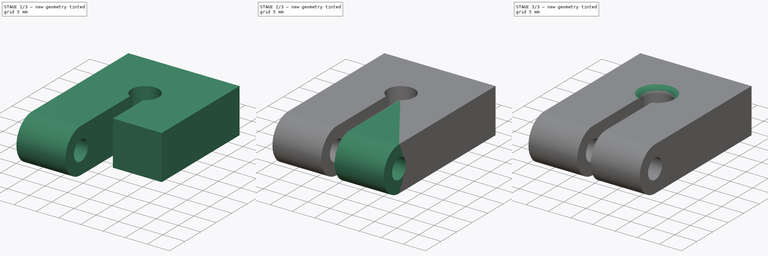
[diagram: build sequence overview — one tinted view per stage of 3, left to right]
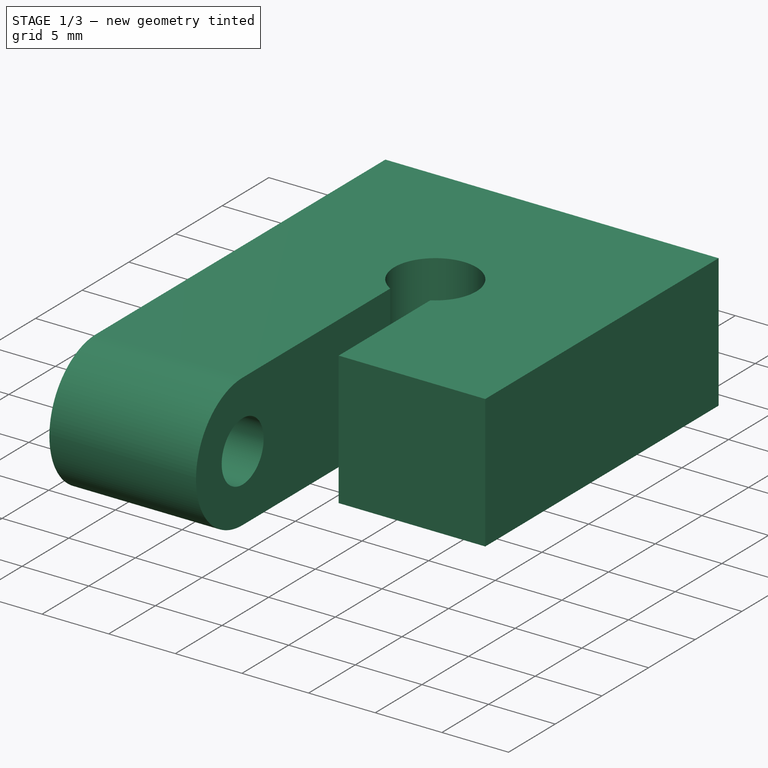
[diagram: stage 1 of 3 — iso view after this stage's code; geometry added in this stage tinted green]
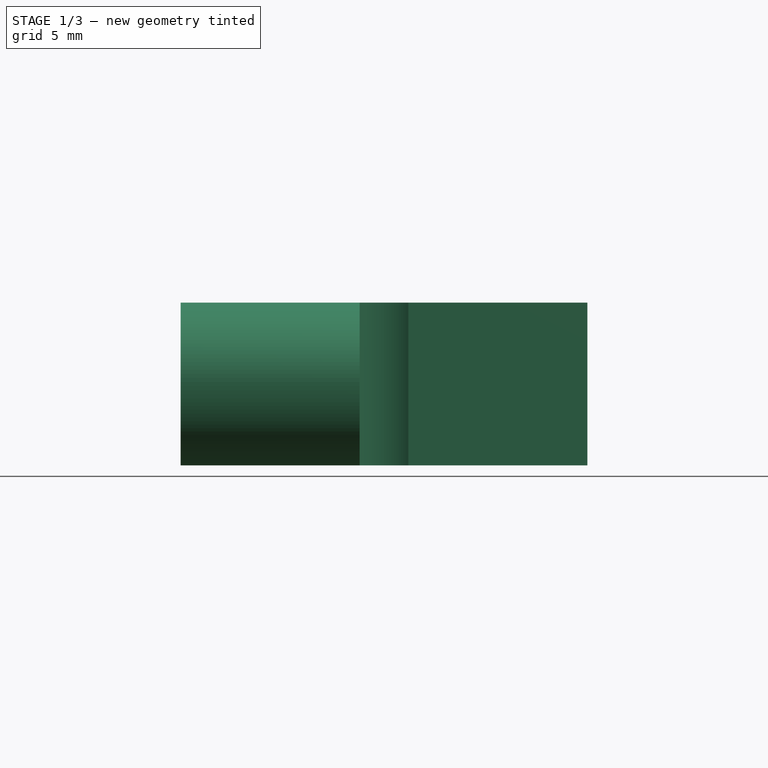
[diagram: stage 1 of 3 — front view after this stage's code; geometry added in this stage tinted green]
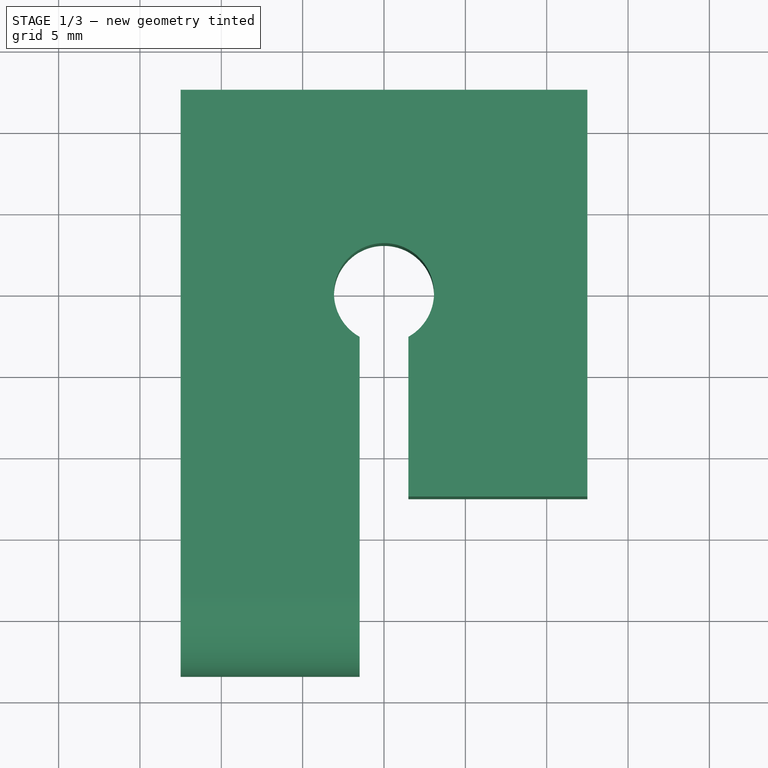
[diagram: stage 1 of 3 — top view after this stage's code; geometry added in this stage tinted green]
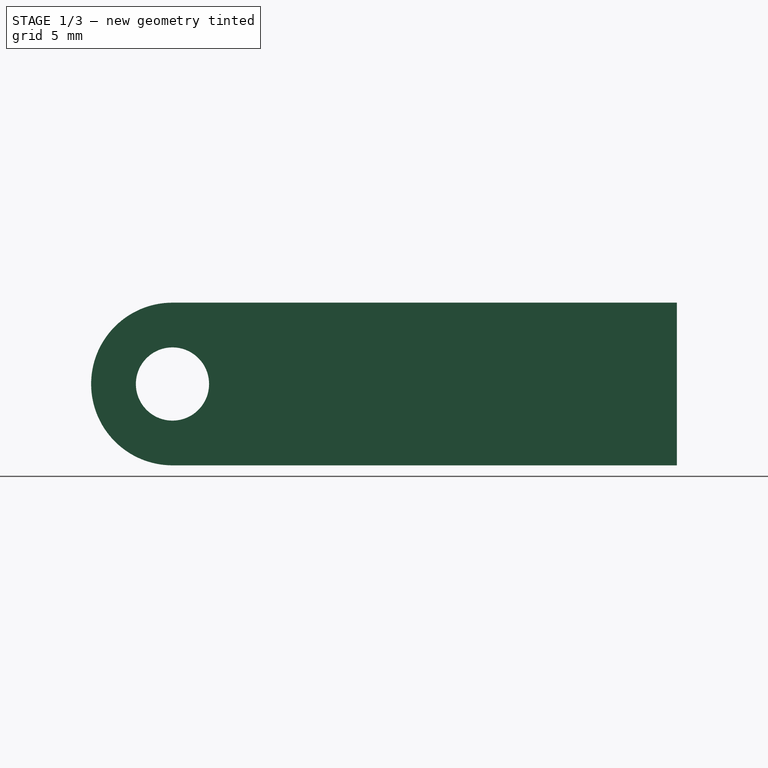
[diagram: stage 1 of 3 — right view after this stage's code; geometry added in this stage tinted green]
FCSTD DOCUMENT  (FreeCAD 1.1R40077 (Git))
Label: NewClampTest
License: All rights reserved
LicenseURL: https://en.wikipedia.org/wiki/All_rights_reserved
objects: Sketcher::SketchObject×3, PartDesign::Pad×2, PartDesign::Mirrored×2, App::Point×1, PartDesign::Groove×1, Part::DatumPlane×1, PartDesign::Body×1
note: 20 computed .brp shape members not serialized (recipe doc carries the construction recipe); baked Part::Feature solids carry a one-line shape summary decoded from their .brp

FEATURE [App::Point] Origin001
  Role = Origin
FEATURE [Sketcher::SketchObject] Sketch
  ArcFitTolerance = 1e-06
  AttachmentSupport = -> [XY_Plane]
  ExternalTypes = [0]
  FullyConstrained = true
  MakeInternals = false
  MapMode = 5
  sketch-geometry (10):
    g0: ArcOfCircle CenterX=0 CenterY=0 CenterZ=0 NormalX=0 NormalY=0 NormalZ=1 AngleXU=0 Radius=3.075 StartAngle=5.22196 EndAngle=10.486
    g1: LineSegment StartX=-12.5 StartY=12.5 StartZ=0 EndX=-12.5 EndY=-12.5 EndZ=0
    g2: LineSegment StartX=-12.5 StartY=-12.5 StartZ=0 EndX=-1.5 EndY=-12.5 EndZ=0
    g3: LineSegment StartX=12.5 StartY=-12.5 StartZ=0 EndX=12.5 EndY=12.5 EndZ=0
    g4: LineSegment StartX=12.5 StartY=12.5 StartZ=0 EndX=-12.5 EndY=12.5 EndZ=0
    g5: GeomPoint [constr] X=0 Y=0 Z=0
    g6: LineSegment StartX=1.5 StartY=-2.68433 StartZ=0 EndX=1.5 EndY=-12.5 EndZ=0
    g7: LineSegment StartX=-1.5 StartY=-12.5 StartZ=0 EndX=-1.5 EndY=-2.68433 EndZ=0
    g8: LineSegment StartX=1.5 StartY=-12.5 StartZ=0 EndX=12.5 EndY=-12.5 EndZ=0
    g9: GeomPoint X=0 Y=-2.68433 Z=0
  constraints (25):
    c: Coincident(g0,g-1)
    c: Coincident(g1,g2)
    c: Coincident(g3,g4)
    c: Coincident(g4,g1)
    c: Vertical(g1)
    c: Vertical(g3)
    c: Horizontal(g4)
    c: Symmetric(g3,g1,g5)
    c: Coincident(g5,g0)
    c: DistanceY(g3,g3) = 25
    c: Equal(g3,g4)
    c: Coincident(g8,g3)
    c: Vertical(g6)
    c: Vertical(g7)
    c: Diameter(g0) = 6.15
    c: Coincident(g6,g0)
    c: Coincident(g7,g0)
    c: Horizontal(g2)
    c: Horizontal(g8)
    c: Coincident(g6,g8)
    c: Coincident(g7,g2)
    c: PointOnObject(g9,g-2)
    c: Symmetric(g0,g0,g9)
    c: Distance(g7,g6) = 3
    c: Horizontal(g2,g6)
FEATURE [PartDesign::Pad] Pad
  Direction = (0,0,1)
  Length = 10
  Length2 = 10
  Profile = -> Sketch
  ReferenceAxis = -> Sketch [N_Axis]
  Refine = true
  Suppressed = false
  Type = 0
FEATURE [Sketcher::SketchObject] Sketch001
  ArcFitTolerance = 1e-06
  AttachmentSupport = -> [Pad]
  ExternalGeometry = -> [Pad]
  ExternalTypes = [0]
  FullyConstrained = true
  MakeInternals = false
  MapMode = 5
  Placement = pos=(-1.5,0,0) rot=(0.57735,0.57735,0.57735;2.0944rad)
  sketch-geometry (4):
    g0: LineSegment StartX=-12.5 StartY=10 StartZ=0 EndX=-18.5 EndY=10 EndZ=0
    g1: ArcOfCircle CenterX=-18.5 CenterY=5 CenterZ=0 NormalX=0 NormalY=0 NormalZ=1 AngleXU=0 Radius=5 StartAngle=1.5708 EndAngle=4.71239
    g2: Circle CenterX=-18.5 CenterY=5 CenterZ=0 NormalX=0 NormalY=0 NormalZ=1 AngleXU=0 Radius=2.25
    g3: LineSegment StartX=-18.5 StartY=-1.00577e-11 StartZ=0 EndX=-12.5 EndY=-1.00577e-11 EndZ=0
  constraints (10):
    c: Coincident(g0,g-3)
    c: Horizontal(g0)
    c: Vertical(g1,g1)
    c: Tangent(g1,g0) = -1.5708
    c: Diameter(g2) = 4.5
    c: Coincident(g2,g1)
    c: DistanceX(g3,g3) = 6
    c: Coincident(g3,g-3)
    c: Coincident(g3,g1)
    c: Horizontal(g3)
FEATURE [PartDesign::Pad] Pad001
  BaseFeature = -> Pad
  Direction = (1,0,0)
  Length = 10
  Length2 = 10
  Profile = -> Sketch001
  ReferenceAxis = -> Sketch001 [N_Axis]
  Refine = true
  Suppressed = false
  Type = 3
  UpToFace = -> Pad [Face5]
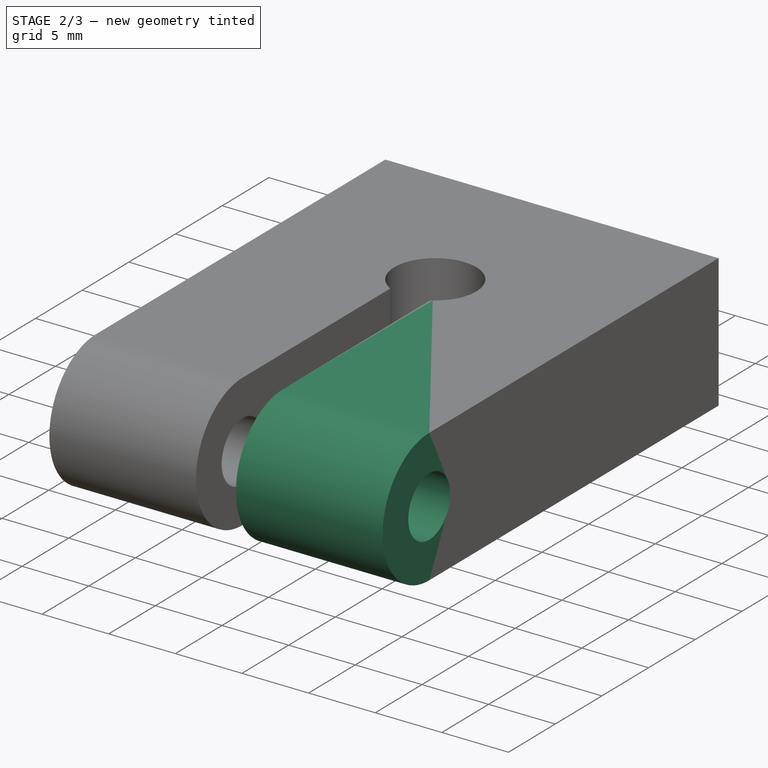
[diagram: stage 2 of 3 — iso view after this stage's code; geometry added in this stage tinted green]
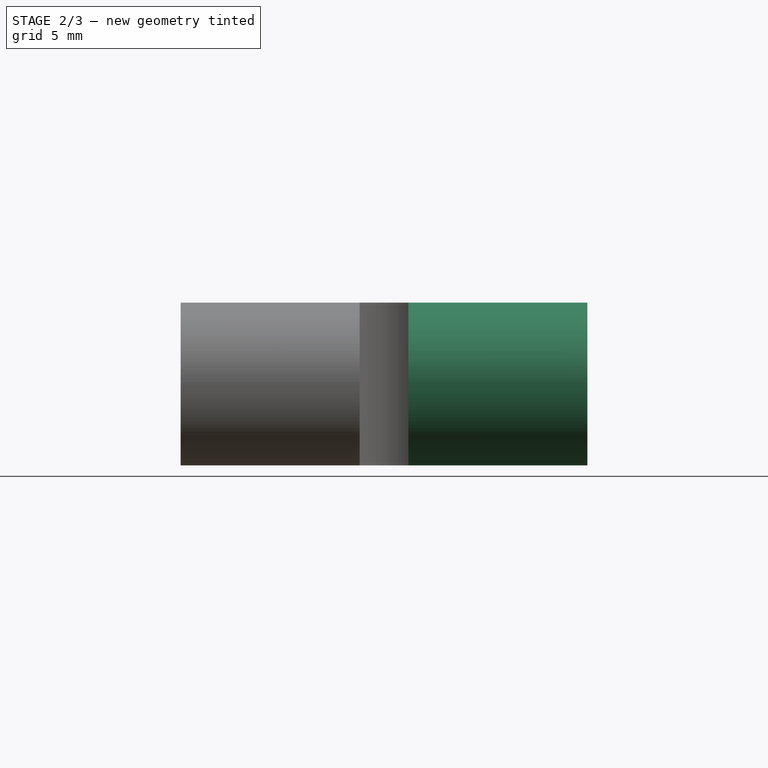
[diagram: stage 2 of 3 — front view after this stage's code; geometry added in this stage tinted green]
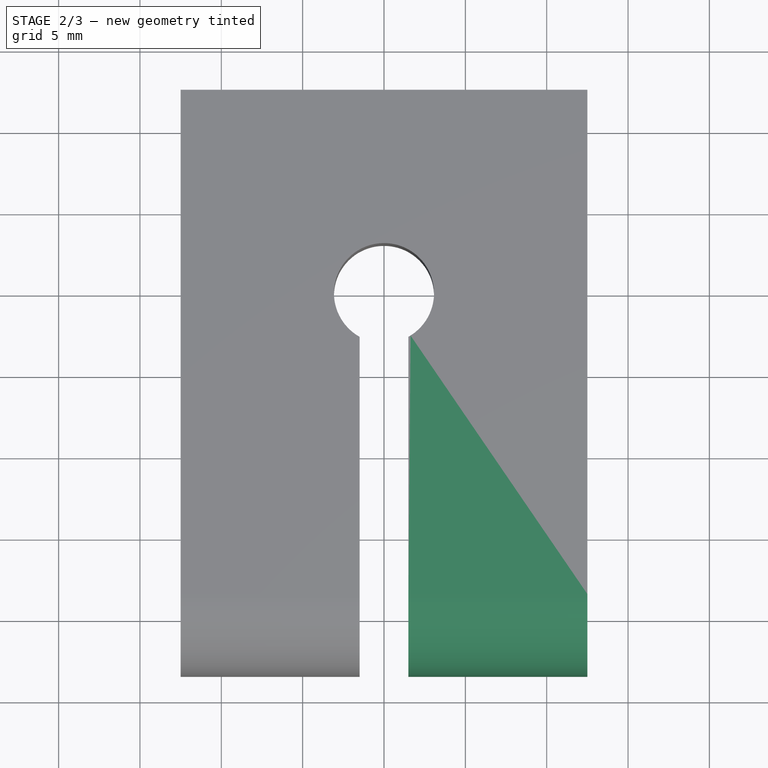
[diagram: stage 2 of 3 — top view after this stage's code; geometry added in this stage tinted green]
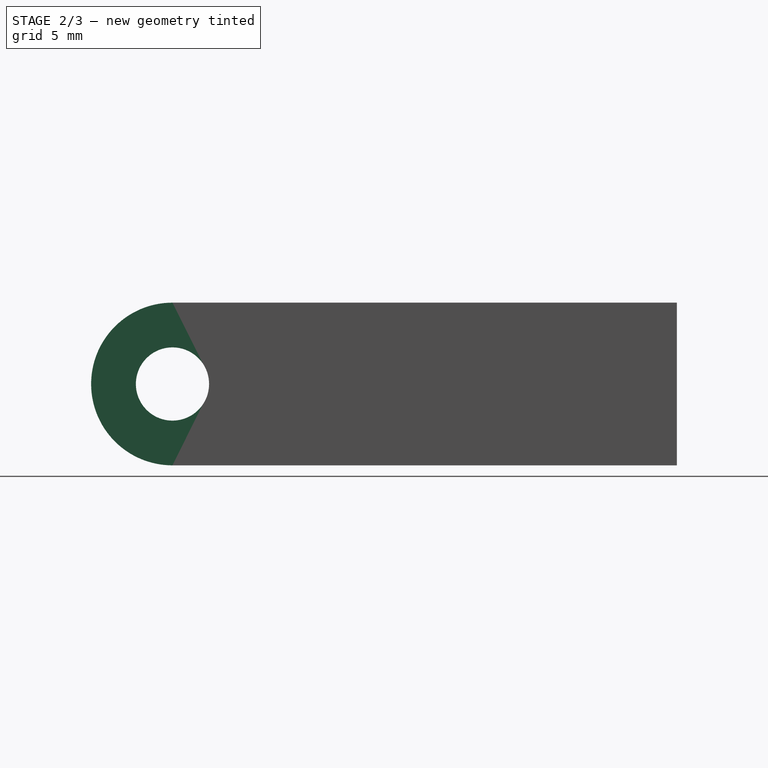
[diagram: stage 2 of 3 — right view after this stage's code; geometry added in this stage tinted green]
FEATURE [PartDesign::Mirrored] Mirrored
  BaseFeature = -> Pad001
  MirrorPlane = -> YZ_Plane
  Originals = -> [Pad001]
  Refine = true
  Suppressed = false
  TransformMode = 0
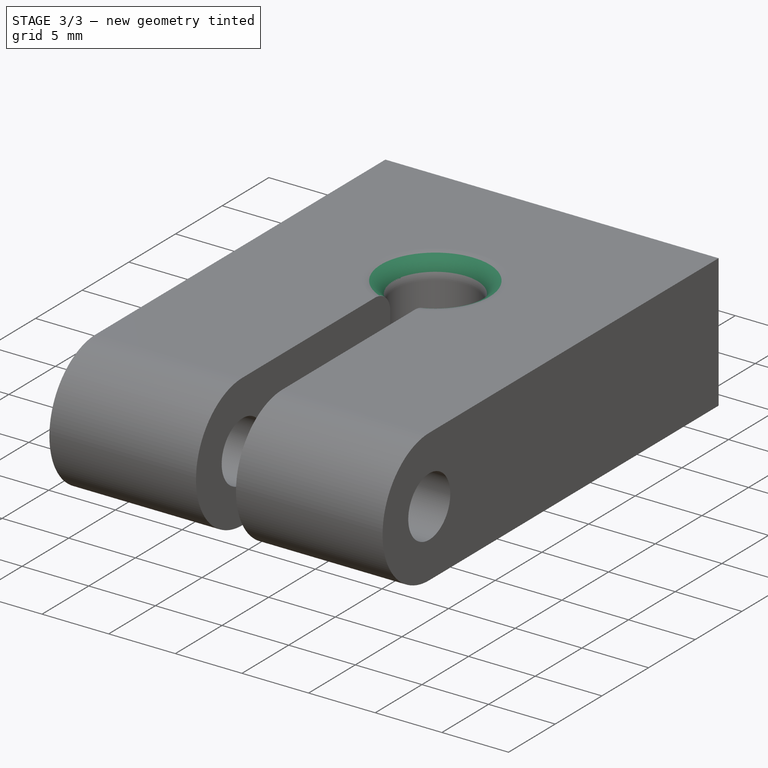
[diagram: stage 3 of 3 — iso view after this stage's code; geometry added in this stage tinted green]
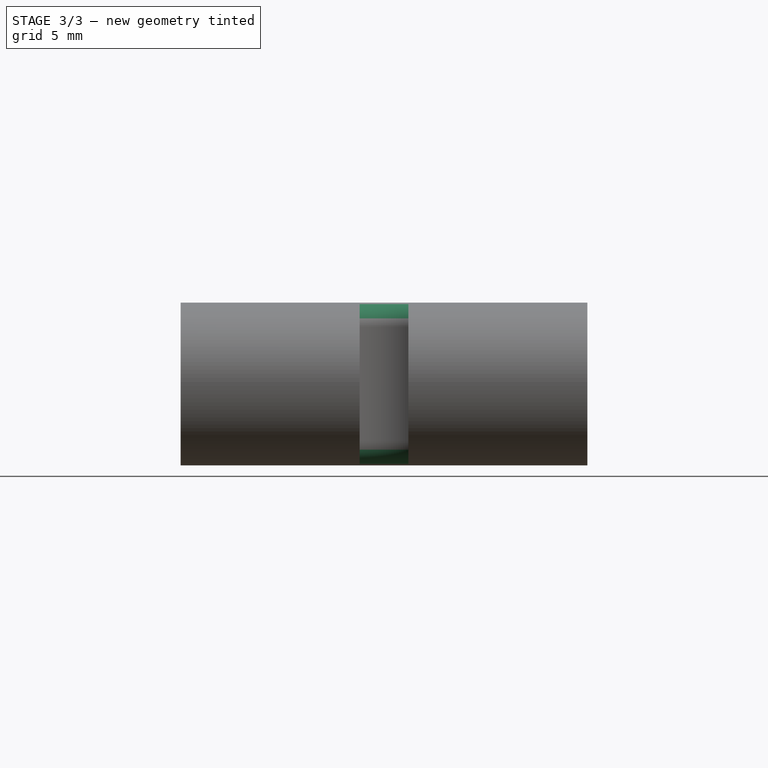
[diagram: stage 3 of 3 — front view after this stage's code; geometry added in this stage tinted green]
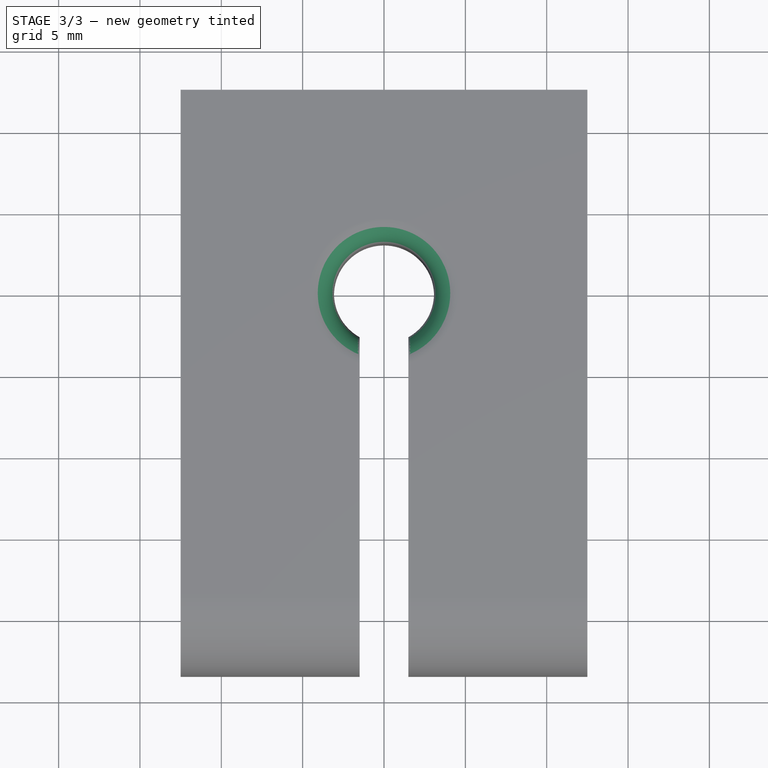
[diagram: stage 3 of 3 — top view after this stage's code; geometry added in this stage tinted green]
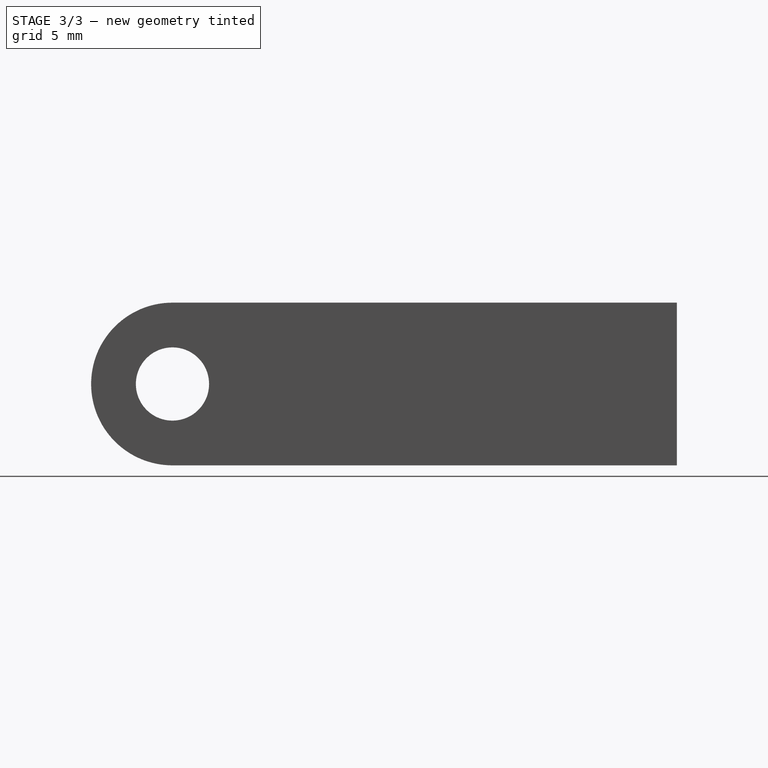
[diagram: stage 3 of 3 — right view after this stage's code; geometry added in this stage tinted green]
FEATURE [Sketcher::SketchObject] Sketch002
  ArcFitTolerance = 1e-06
  AttachmentSupport = -> [XZ_Plane]
  ExternalGeometry = -> [Mirrored]
  ExternalTypes = [0]
  FullyConstrained = true
  MakeInternals = false
  MapMode = 5
  Placement = pos=(0,0,0) rot=(1,0,0;1.5708rad)
  sketch-geometry (3):
    g0: LineSegment StartX=3.075 StartY=8.5 StartZ=0 EndX=3.075 EndY=10 EndZ=0
    g1: LineSegment StartX=3.075 StartY=10 StartZ=0 EndX=4.575 EndY=10 EndZ=0
    g2: ArcOfCircle CenterX=4.575 CenterY=8.5 CenterZ=0 NormalX=0 NormalY=0 NormalZ=1 AngleXU=0 Radius=1.5 StartAngle=1.5708 EndAngle=3.14159
  constraints (8):
    c: PointOnObject(g0,g-12)
    c: PointOnObject(g0,g-15)
    c: Vertical(g0)
    c: Coincident(g0,g1)
    c: Horizontal(g1)
    c: Tangent(g2,g0) = 1.5708
    c: Tangent(g2,g1) = 1.5708
    c: Radius(g2) = 1.5
FEATURE [PartDesign::Groove] Groove
  Angle = 360
  Angle2 = 60
  Axis = (0,2e-16,1)
  Base = (0,0,0)
  BaseFeature = -> Mirrored
  Profile = -> Sketch002
  ReferenceAxis = -> Sketch002 [V_Axis]
  Refine = true
  Suppressed = false
  Type = 0
FEATURE [Part::DatumPlane] DatumPlane
  AttachmentOffset = pos=(0,0,0) rot=(1,0,0;1.5708rad)
  AttachmentSupport = -> [Mirrored]
  MapMode = 45
  Placement = pos=(5e-16,0.569905,5) rot=(0,0,1;0rad)
FEATURE [PartDesign::Mirrored] Mirrored001
  BaseFeature = -> Groove
  MirrorPlane = -> DatumPlane
  Originals = -> [Groove]
  Refine = true
  Suppressed = false
  TransformMode = 0
FEATURE [PartDesign::Body] Body  label="Clamp Test"
  AllowCompound = true
  Group = -> [Sketch,Pad,Sketch001,Pad001,Mirrored,Sketch002,DatumPlane,Groove,Mirrored001]
  Origin = -> Origin
  Tip = -> Mirrored001
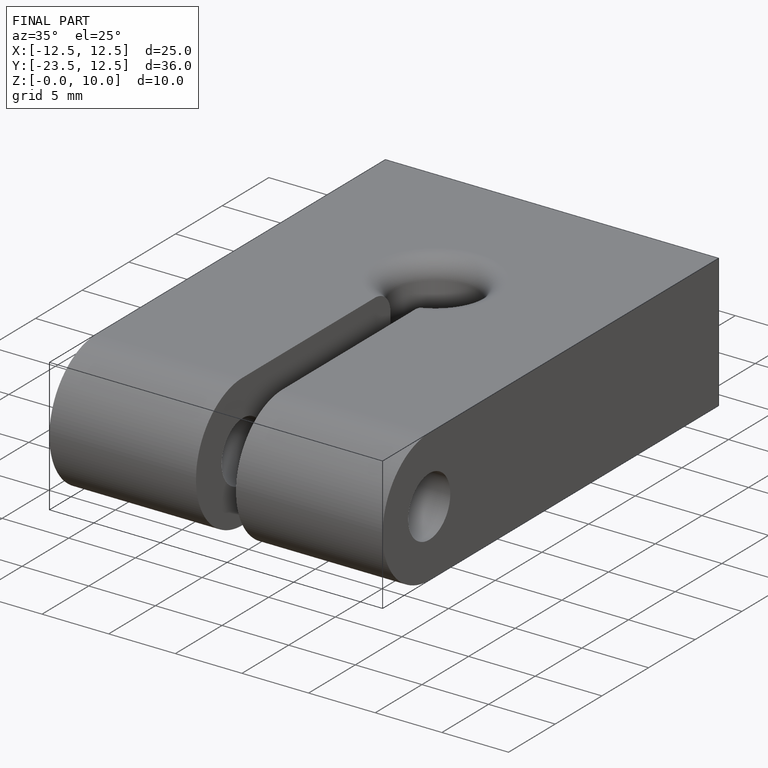
[diagram: finished part — iso view with bounding-box wireframe]
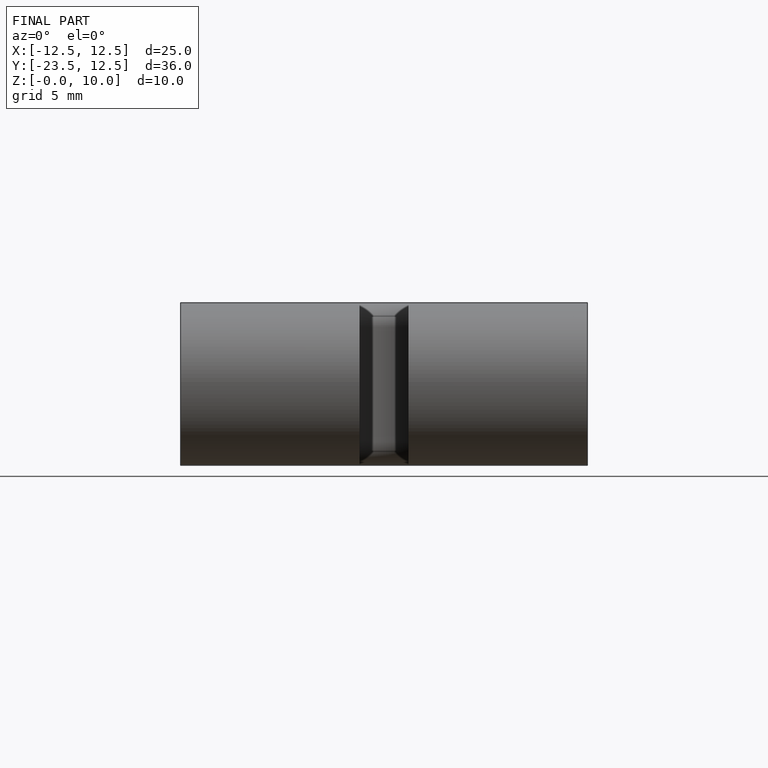
[diagram: finished part — front view with bounding-box wireframe]
